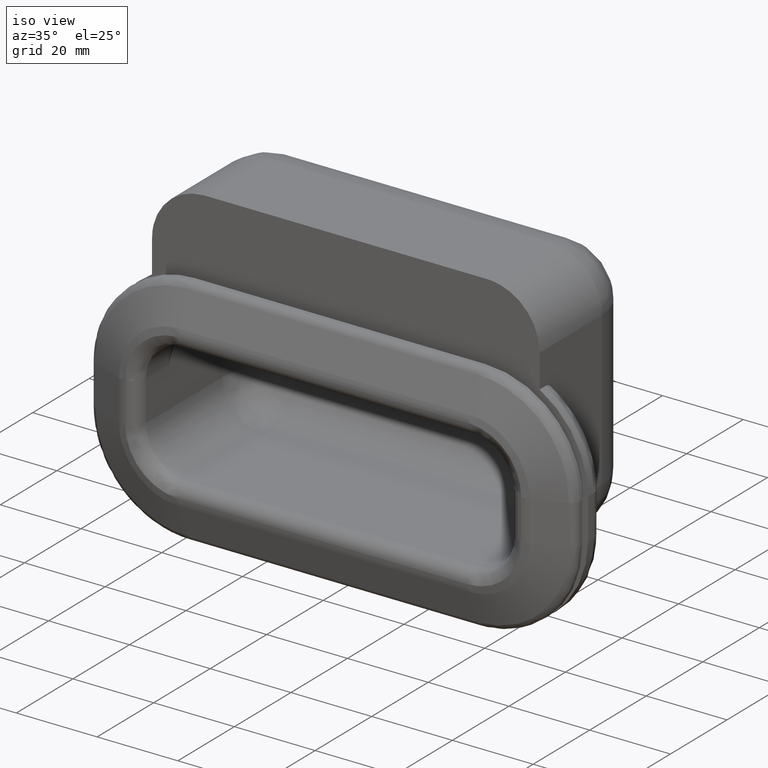
[diagram: clean part render]
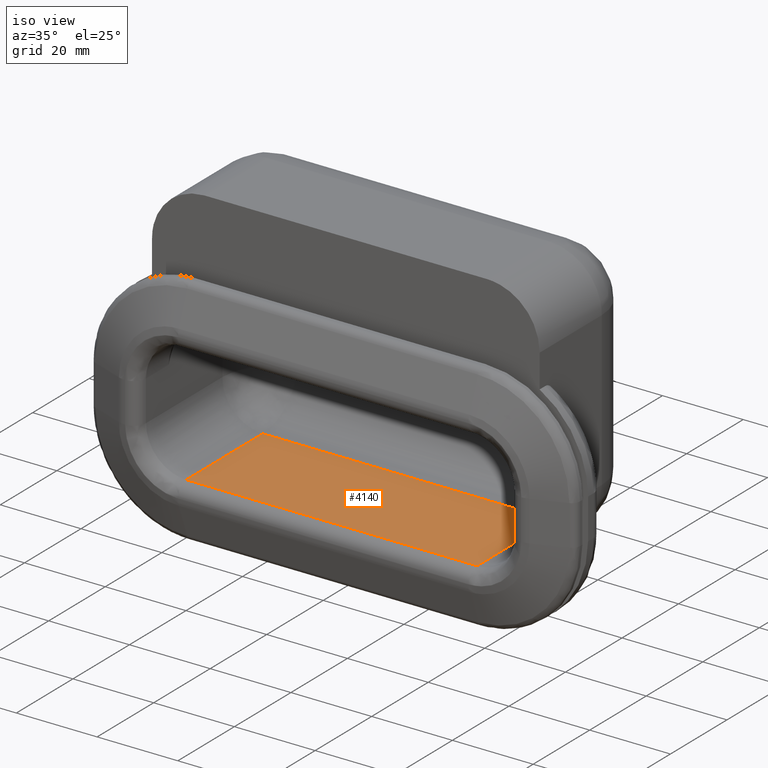
[diagram: same view with one face highlighted and labeled with its STEP entity id]
A machine part, iso view. The second image highlights one B-rep face of the part: STEP entity #4140.
In plain terms, the highlighted face is a freeform B-spline surface patch.
Its self-contained STEP definition (entity closure, byte-faithful):
#58=CARTESIAN_POINT('',(-36.0,3.0,-15.0));
#59=VERTEX_POINT('',#58);
#82=CARTESIAN_POINT('',(36.0,3.0,-15.0));
#83=VERTEX_POINT('',#82);
#97=CARTESIAN_POINT('',(-36.0,3.0,-15.0));
#98=CARTESIAN_POINT('',(36.0,3.0,-15.0));
#99=QUASI_UNIFORM_CURVE('',1,(#97,#98),.UNSPECIFIED.,.F.,.U.);
#100=EDGE_CURVE('',#59,#83,#99,.T.);
#2920=CARTESIAN_POINT('',(36.0,30.0,-15.0));
#2921=VERTEX_POINT('',#2920);
#2922=CARTESIAN_POINT('',(36.0,3.0,-15.0));
#2923=CARTESIAN_POINT('',(36.0,30.0,-15.0));
#2924=QUASI_UNIFORM_CURVE('',1,(#2922,#2923),.UNSPECIFIED.,.F.,.U.);
#2925=EDGE_CURVE('',#83,#2921,#2924,.T.);
#3085=CARTESIAN_POINT('',(-36.0,30.0,-15.0));
#3086=VERTEX_POINT('',#3085);
#3087=CARTESIAN_POINT('',(-36.0,30.0,-15.0));
#3088=CARTESIAN_POINT('',(-36.0,3.0,-15.0));
#3089=QUASI_UNIFORM_CURVE('',1,(#3087,#3088),.UNSPECIFIED.,.F.,.U.);
#3090=EDGE_CURVE('',#3086,#59,#3089,.T.);
#3532=CARTESIAN_POINT('',(36.0,30.0,-15.0));
#3533=CARTESIAN_POINT('',(-36.0,30.0,-15.0));
#3534=QUASI_UNIFORM_CURVE('',1,(#3532,#3533),.UNSPECIFIED.,.F.,.U.);
#3535=EDGE_CURVE('',#2921,#3086,#3534,.T.);
#4129=CARTESIAN_POINT('',(39.596399860450028,1.651350052331239,-15.0));
#4130=CARTESIAN_POINT('',(-39.596401791640517,1.651350052331239,-15.0));
#4131=CARTESIAN_POINT('',(39.596399860450028,31.348650671865201,-15.0));
#4132=CARTESIAN_POINT('',(-39.596401791640517,31.348650671865201,-15.0));
#4133=B_SPLINE_SURFACE_WITH_KNOTS('',1,1,((#4129,#4131),(#4130,#4132)),.UNSPECIFIED.,.F.,.F.,.U.,(2,2),(2,2),(0.0,79.192801652090537),(0.0,29.697300619533959),.UNSPECIFIED.);
#4134=ORIENTED_EDGE('',*,*,#3090,.T.);
#4135=ORIENTED_EDGE('',*,*,#100,.T.);
#4136=ORIENTED_EDGE('',*,*,#2925,.T.);
#4137=ORIENTED_EDGE('',*,*,#3535,.T.);
#4138=EDGE_LOOP('',(#4134,#4135,#4136,#4137));
#4139=FACE_OUTER_BOUND('',#4138,.T.);
#4140=ADVANCED_FACE('',(#4139),#4133,.F.);